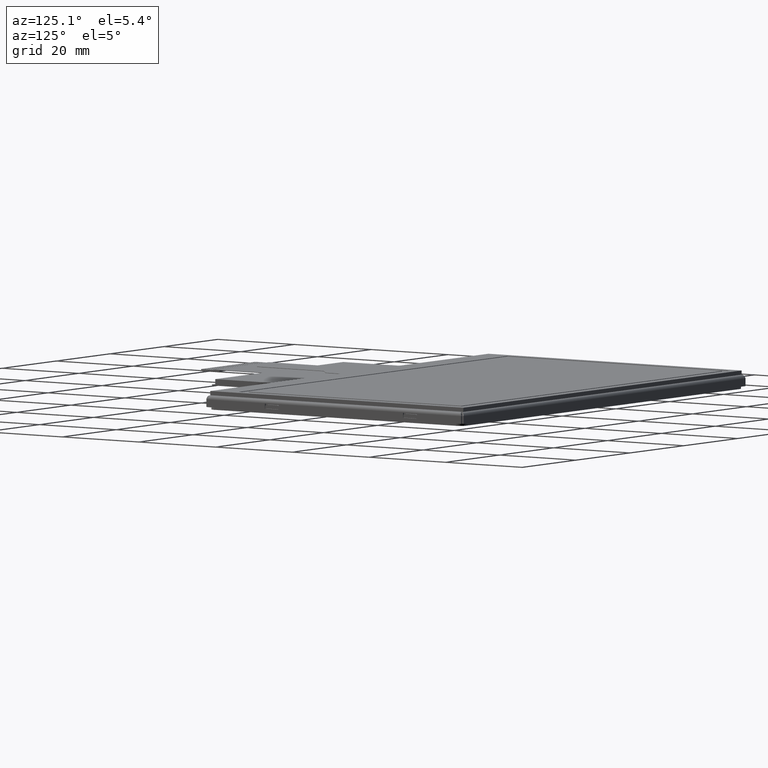
[diagram: clean part render]
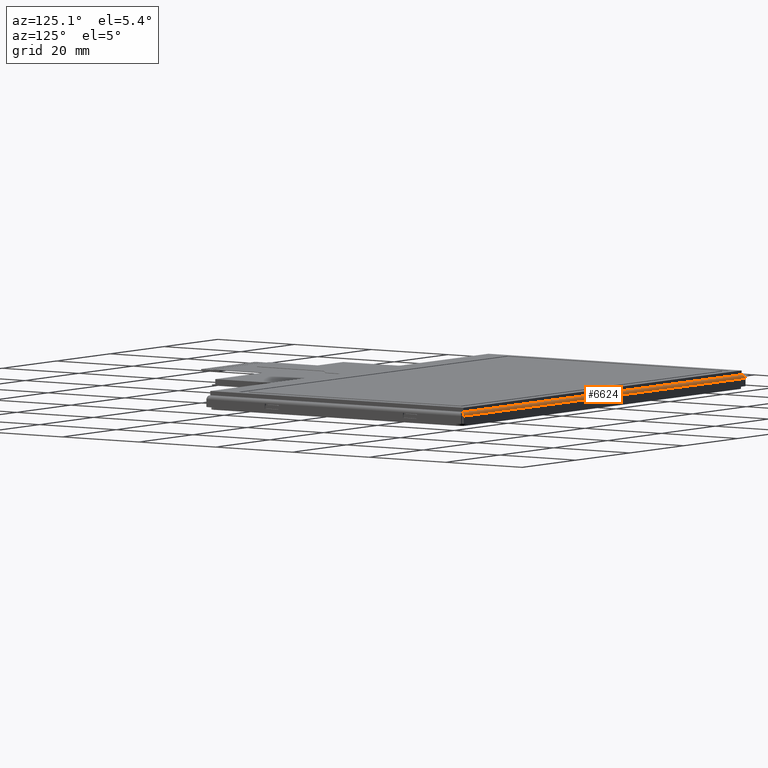
[diagram: same view with one face highlighted and labeled with its STEP entity id]
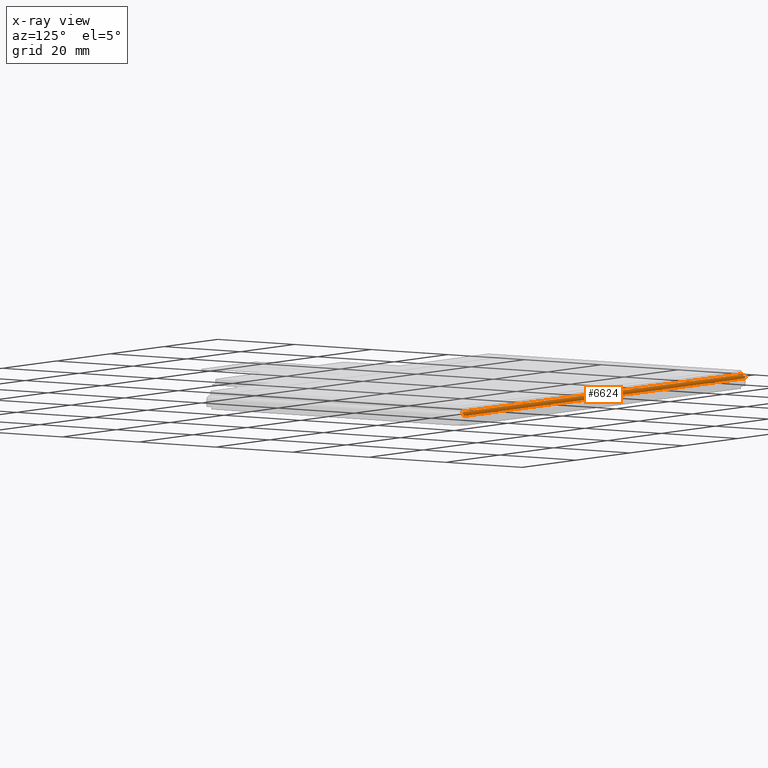
[diagram: x-ray of the same camera — body ghosted, the highlighted face saturated]
A machine part, auxiliary view. The second image highlights one B-rep face of the part: STEP entity #6624.
The next image is the same camera in x-ray: the body ghosted, the highlighted face saturated — about 0% of this face is hidden behind the body in this view.
In plain terms, the highlighted cylindrical surface (edge-blend (fillet) strip) has radius 0.8 mm, axis along (-1, 0, 0).
Its self-contained STEP definition (entity closure, byte-faithful):
#33=B_SPLINE_CURVE_WITH_KNOTS('',3,(#9838,#9839,#9840,#9841,#9842,#9843,
#9844,#9845,#9846,#9847,#9848,#9849,#9850,#9851,#9852,#9853,#9854,#9855,
#9856,#9857,#9858,#9859,#9860,#9861,#9862,#9863,#9864,#9865,#9866,#9867,
#9868,#9869,#9870,#9871,#9872,#9873,#9874,#9875,#9876,#9877,#9878,#9879,
#9880,#9881,#9882,#9883),.UNSPECIFIED.,.F.,.F.,(4,3,3,3,3,3,3,3,3,3,3,3,
3,3,3,4),(0.,0.0891618869259889,0.178329668151881,0.2,0.288887911207503,
0.37777837668131,0.4,0.488973966390891,0.577951103741246,0.6,0.688887234304132,
0.777778301584439,0.8,0.88916481579804,0.978329985089809,1.),
 .UNSPECIFIED.);
#35=B_SPLINE_CURVE_WITH_KNOTS('',3,(#9926,#9927,#9928,#9929,#9930,#9931,
#9932,#9933,#9934,#9935,#9936,#9937,#9938,#9939,#9940,#9941,#9942,#9943,
#9944,#9945,#9946,#9947,#9948,#9949,#9950,#9951,#9952,#9953,#9954,#9955,
#9956,#9957,#9958,#9959,#9960,#9961,#9962,#9963,#9964,#9965,#9966,#9967,
#9968,#9969,#9970,#9971),.UNSPECIFIED.,.F.,.F.,(4,3,3,3,3,3,3,3,3,3,3,3,
3,3,3,4),(0.,0.0891618869259889,0.178329668151884,0.2,0.288887911207503,
0.37777837668131,0.4,0.488973966390891,0.57795110374124,0.6,0.688887234304132,
0.777778301584439,0.8,0.88916481579804,0.978329985089809,1.),
 .UNSPECIFIED.);
#476=FACE_OUTER_BOUND('',#837,.T.);
#837=EDGE_LOOP('',(#5091,#5092,#5093,#5094,#5095,#5096));
#1364=LINE('',#9920,#2257);
#1365=LINE('',#9922,#2258);
#1366=LINE('',#9923,#2259);
#1367=LINE('',#9925,#2260);
#2257=VECTOR('',#7853,104.6);
#2258=VECTOR('',#7856,103.8);
#2259=VECTOR('',#7857,103.8);
#2260=VECTOR('',#7858,103.8);
#2955=VERTEX_POINT('',#9055);
#2960=VERTEX_POINT('',#9069);
#3129=VERTEX_POINT('',#9578);
#3152=VERTEX_POINT('',#9717);
#3154=VERTEX_POINT('',#9837);
#3155=VERTEX_POINT('',#9924);
#3882=EDGE_CURVE('',#3154,#3152,#33,.T.);
#3887=EDGE_CURVE('',#3129,#3154,#1364,.T.);
#3888=EDGE_CURVE('',#2960,#3152,#1365,.T.);
#3889=EDGE_CURVE('',#2955,#2960,#1366,.T.);
#3890=EDGE_CURVE('',#3155,#2955,#1367,.T.);
#3891=EDGE_CURVE('',#3129,#3155,#35,.T.);
#5091=ORIENTED_EDGE('',*,*,#3887,.T.);
#5092=ORIENTED_EDGE('',*,*,#3882,.T.);
#5093=ORIENTED_EDGE('',*,*,#3888,.F.);
#5094=ORIENTED_EDGE('',*,*,#3889,.F.);
#5095=ORIENTED_EDGE('',*,*,#3890,.F.);
#5096=ORIENTED_EDGE('',*,*,#3891,.F.);
#6503=CYLINDRICAL_SURFACE('',#7034,0.8);
#6624=ADVANCED_FACE('',(#476),#6503,.T.);
#7034=AXIS2_PLACEMENT_3D('',#9921,#7854,#7855);
#7853=DIRECTION('',(-1.,2.16453909658425E-16,0.));
#7854=DIRECTION('center_axis',(-1.,2.16453909658425E-16,0.));
#7855=DIRECTION('ref_axis',(0.,0.,1.));
#7856=DIRECTION('',(-1.,2.16453909658425E-16,0.));
#7857=DIRECTION('',(-1.,2.16453909658425E-16,0.));
#7858=DIRECTION('',(-1.,2.16453909658425E-16,0.));
#9055=CARTESIAN_POINT('',(51.6499999999999,30.3779999999999,-0.899999999999999));
#9069=CARTESIAN_POINT('',(-51.6500000000002,30.3779999999999,-0.899999999999999));
#9578=CARTESIAN_POINT('',(52.2999999999996,31.1779999999999,-1.7));
#9717=CARTESIAN_POINT('',(-51.9000000000003,30.3779999999999,-0.899999999999999));
#9837=CARTESIAN_POINT('',(-52.3000000000003,31.1779999999999,-1.7));
#9838=CARTESIAN_POINT('Ctrl Pts',(-52.3000000000004,31.178,-1.7));
#9839=CARTESIAN_POINT('Ctrl Pts',(-52.2881117484088,31.178,-1.66265195614029));
#9840=CARTESIAN_POINT('Ctrl Pts',(-52.2762234968181,31.1753802683004,-1.62530300770498));
#9841=CARTESIAN_POINT('Ctrl Pts',(-52.264335245228,31.1701663723022,-1.5883199275007));
#9842=CARTESIAN_POINT('Ctrl Pts',(-52.2524462077312,31.1649521316246,-1.55133440242482));
#9843=CARTESIAN_POINT('Ctrl Pts',(-52.240557170235,31.1571434533928,-1.51471528769834));
#9844=CARTESIAN_POINT('Ctrl Pts',(-52.2286681327386,31.1468174953788,-1.47882211050983));
#9845=CARTESIAN_POINT('Ctrl Pts',(-52.225778755159,31.144307991007,-1.47009903755607));
#9846=CARTESIAN_POINT('Ctrl Pts',(-52.2228893775793,31.1416500442348,-1.46141878730477));
#9847=CARTESIAN_POINT('Ctrl Pts',(-52.2199999999996,31.138845213036,-1.45278640449977));
#9848=CARTESIAN_POINT('Ctrl Pts',(-52.2081482785056,31.1273402860097,-1.41737787999456));
#9849=CARTESIAN_POINT('Ctrl Pts',(-52.1962965570115,31.113358547637,-1.38277105781629));
#9850=CARTESIAN_POINT('Ctrl Pts',(-52.1844448355172,31.0970361817825,-1.34930501958607));
#9851=CARTESIAN_POINT('Ctrl Pts',(-52.1725927734542,31.0807133468916,-1.31583801968206));
#9852=CARTESIAN_POINT('Ctrl Pts',(-52.160740711391,31.0620499707778,-1.28351232448073));
#9853=CARTESIAN_POINT('Ctrl Pts',(-52.1488886493278,31.0412290990797,-1.25264425550367));
#9854=CARTESIAN_POINT('Ctrl Pts',(-52.1459257662187,31.0360241137579,-1.24492758310548));
#9855=CARTESIAN_POINT('Ctrl Pts',(-52.1429628831095,31.0306845160595,-1.23730187431258));
#9856=CARTESIAN_POINT('Ctrl Pts',(-52.1400000000004,31.0252135954993,-1.22977179816513));
#9857=CARTESIAN_POINT('Ctrl Pts',(-52.1281368044816,31.0033083775467,-1.19962185221131));
#9858=CARTESIAN_POINT('Ctrl Pts',(-52.1162736089628,30.9792914885156,-1.1710031961419));
#9859=CARTESIAN_POINT('Ctrl Pts',(-52.104410413444,30.95339781629,-1.14419665977196));
#9860=CARTESIAN_POINT('Ctrl Pts',(-52.0925467951307,30.927503221235,-1.11738916803896));
#9861=CARTESIAN_POINT('Ctrl Pts',(-52.0806831768173,30.8997320585193,-1.09239428799486));
#9862=CARTESIAN_POINT('Ctrl Pts',(-52.0688195585039,30.8703567365608,-1.06945670730458));
#9863=CARTESIAN_POINT('Ctrl Pts',(-52.0658797056694,30.8630774123915,-1.06377268158598));
#9864=CARTESIAN_POINT('Ctrl Pts',(-52.0629398528349,30.8556997472472,-1.0582147999927));
#9865=CARTESIAN_POINT('Ctrl Pts',(-52.0600000000004,30.8482282018333,-1.0527864044996));
#9866=CARTESIAN_POINT('Ctrl Pts',(-52.0481483687598,30.8181076461364,-1.0309025398187));
#9867=CARTESIAN_POINT('Ctrl Pts',(-52.0362967375193,30.7864547320902,-1.01112329759003));
#9868=CARTESIAN_POINT('Ctrl Pts',(-52.0244451062788,30.7535790036225,-0.993642858011662));
#9869=CARTESIAN_POINT('Ctrl Pts',(-52.0125929639748,30.7207018574946,-0.97616166464554));
#9870=CARTESIAN_POINT('Ctrl Pts',(-52.0007408216709,30.6866022378371,-0.960979710353479));
#9871=CARTESIAN_POINT('Ctrl Pts',(-51.9888886793672,30.6516142084912,-0.948245209585114));
#9872=CARTESIAN_POINT('Ctrl Pts',(-51.9859257862452,30.6428676216848,-0.945061737452251));
#9873=CARTESIAN_POINT('Ctrl Pts',(-51.9829628931232,30.6340656153324,-0.942030982558907));
#9874=CARTESIAN_POINT('Ctrl Pts',(-51.9800000000012,30.6252135954999,-0.939154786963868));
#9875=CARTESIAN_POINT('Ctrl Pts',(-51.9681113578952,30.5896947659735,-0.9276140196636));
#9876=CARTESIAN_POINT('Ctrl Pts',(-51.9562227157893,30.553364494702,-0.918563951542923));
#9877=CARTESIAN_POINT('Ctrl Pts',(-51.9443340736831,30.516579382742,-0.912094069905024));
#9878=CARTESIAN_POINT('Ctrl Pts',(-51.9324453844444,30.4797941249475,-0.905624162617292));
#9879=CARTESIAN_POINT('Ctrl Pts',(-51.9205566952054,30.442554513673,-0.901734550042718));
#9880=CARTESIAN_POINT('Ctrl Pts',(-51.9086680059654,30.4052262659368,-0.900463427701309));
#9881=CARTESIAN_POINT('Ctrl Pts',(-51.9057786706438,30.3961542965631,-0.900154503933096));
#9882=CARTESIAN_POINT('Ctrl Pts',(-51.9028893353221,30.3870771146198,-0.899999999999999));
#9883=CARTESIAN_POINT('Ctrl Pts',(-51.9000000000004,30.378,-0.899999999999999));
#9920=CARTESIAN_POINT('',(52.2999999999996,31.1779999999999,-1.7));
#9921=CARTESIAN_POINT('Origin',(190.09944,30.3779999999999,-1.7));
#9922=CARTESIAN_POINT('',(51.8999999999997,30.3779999999999,-0.899999999999999));
#9923=CARTESIAN_POINT('',(51.8999999999997,30.3779999999999,-0.899999999999999));
#9924=CARTESIAN_POINT('',(51.8999999999997,30.3779999999999,-0.899999999999999));
#9925=CARTESIAN_POINT('',(51.8999999999997,30.3779999999999,-0.899999999999999));
#9926=CARTESIAN_POINT('Ctrl Pts',(52.2999999999996,31.1779999999999,-1.7));
#9927=CARTESIAN_POINT('Ctrl Pts',(52.288111748408,31.1779999999999,-1.66265195614029));
#9928=CARTESIAN_POINT('Ctrl Pts',(52.2762234968174,31.1753802683004,-1.62530300770498));
#9929=CARTESIAN_POINT('Ctrl Pts',(52.2643352452272,31.1701663723022,-1.5883199275007));
#9930=CARTESIAN_POINT('Ctrl Pts',(52.2524462077304,31.1649521316246,-1.55133440242481));
#9931=CARTESIAN_POINT('Ctrl Pts',(52.2405571702341,31.1571434533927,-1.51471528769833));
#9932=CARTESIAN_POINT('Ctrl Pts',(52.2286681327377,31.1468174953788,-1.47882211050983));
#9933=CARTESIAN_POINT('Ctrl Pts',(52.2257787551581,31.144307991007,-1.47009903755607));
#9934=CARTESIAN_POINT('Ctrl Pts',(52.2228893775785,31.1416500442347,-1.46141878730477));
#9935=CARTESIAN_POINT('Ctrl Pts',(52.2199999999988,31.138845213036,-1.45278640449977));
#9936=CARTESIAN_POINT('Ctrl Pts',(52.2081482785048,31.1273402860097,-1.41737787999456));
#9937=CARTESIAN_POINT('Ctrl Pts',(52.1962965570107,31.113358547637,-1.38277105781629));
#9938=CARTESIAN_POINT('Ctrl Pts',(52.1844448355165,31.0970361817825,-1.34930501958607));
#9939=CARTESIAN_POINT('Ctrl Pts',(52.1725927734534,31.0807133468916,-1.31583801968206));
#9940=CARTESIAN_POINT('Ctrl Pts',(52.1607407113902,31.0620499707778,-1.28351232448073));
#9941=CARTESIAN_POINT('Ctrl Pts',(52.1488886493271,31.0412290990797,-1.25264425550367));
#9942=CARTESIAN_POINT('Ctrl Pts',(52.1459257662179,31.0360241137578,-1.24492758310548));
#9943=CARTESIAN_POINT('Ctrl Pts',(52.1429628831088,31.0306845160595,-1.23730187431258));
#9944=CARTESIAN_POINT('Ctrl Pts',(52.1399999999996,31.0252135954992,-1.22977179816513));
#9945=CARTESIAN_POINT('Ctrl Pts',(52.1281368044808,31.0033083775467,-1.19962185221131));
#9946=CARTESIAN_POINT('Ctrl Pts',(52.116273608962,30.9792914885156,-1.1710031961419));
#9947=CARTESIAN_POINT('Ctrl Pts',(52.1044104134432,30.95339781629,-1.14419665977196));
#9948=CARTESIAN_POINT('Ctrl Pts',(52.0925467951299,30.927503221235,-1.11738916803896));
#9949=CARTESIAN_POINT('Ctrl Pts',(52.0806831768165,30.8997320585193,-1.09239428799487));
#9950=CARTESIAN_POINT('Ctrl Pts',(52.0688195585031,30.8703567365608,-1.06945670730459));
#9951=CARTESIAN_POINT('Ctrl Pts',(52.0658797056686,30.8630774123914,-1.06377268158599));
#9952=CARTESIAN_POINT('Ctrl Pts',(52.0629398528341,30.8556997472472,-1.0582147999927));
#9953=CARTESIAN_POINT('Ctrl Pts',(52.0599999999996,30.8482282018333,-1.0527864044996));
#9954=CARTESIAN_POINT('Ctrl Pts',(52.0481483687591,30.8181076461364,-1.0309025398187));
#9955=CARTESIAN_POINT('Ctrl Pts',(52.0362967375184,30.7864547320902,-1.01112329759003));
#9956=CARTESIAN_POINT('Ctrl Pts',(52.024445106278,30.7535790036224,-0.993642858011662));
#9957=CARTESIAN_POINT('Ctrl Pts',(52.012592963974,30.7207018574946,-0.97616166464554));
#9958=CARTESIAN_POINT('Ctrl Pts',(52.0007408216702,30.6866022378371,-0.960979710353479));
#9959=CARTESIAN_POINT('Ctrl Pts',(51.9888886793664,30.6516142084911,-0.948245209585114));
#9960=CARTESIAN_POINT('Ctrl Pts',(51.9859257862444,30.6428676216847,-0.945061737452251));
#9961=CARTESIAN_POINT('Ctrl Pts',(51.9829628931224,30.6340656153324,-0.942030982558907));
#9962=CARTESIAN_POINT('Ctrl Pts',(51.9800000000004,30.6252135954999,-0.939154786963868));
#9963=CARTESIAN_POINT('Ctrl Pts',(51.9681113578944,30.5896947659735,-0.9276140196636));
#9964=CARTESIAN_POINT('Ctrl Pts',(51.9562227157885,30.553364494702,-0.918563951542923));
#9965=CARTESIAN_POINT('Ctrl Pts',(51.9443340736823,30.516579382742,-0.912094069905024));
#9966=CARTESIAN_POINT('Ctrl Pts',(51.9324453844436,30.4797941249475,-0.905624162617292));
#9967=CARTESIAN_POINT('Ctrl Pts',(51.9205566952046,30.442554513673,-0.901734550042718));
#9968=CARTESIAN_POINT('Ctrl Pts',(51.9086680059646,30.4052262659367,-0.900463427701309));
#9969=CARTESIAN_POINT('Ctrl Pts',(51.905778670643,30.396154296563,-0.900154503933096));
#9970=CARTESIAN_POINT('Ctrl Pts',(51.9028893353214,30.3870771146197,-0.899999999999999));
#9971=CARTESIAN_POINT('Ctrl Pts',(51.8999999999996,30.3779999999999,-0.899999999999999));